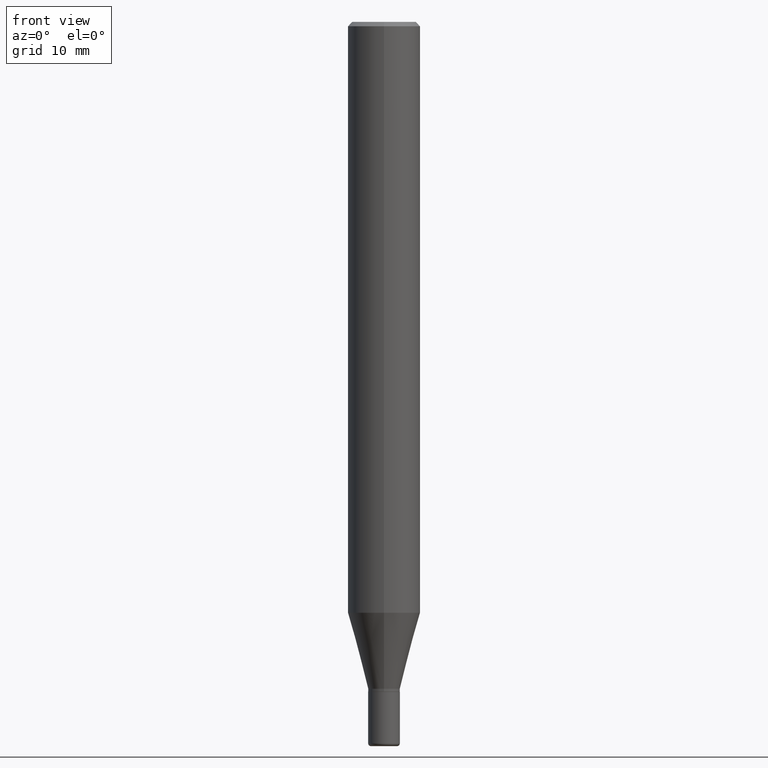
[diagram: clean part render]
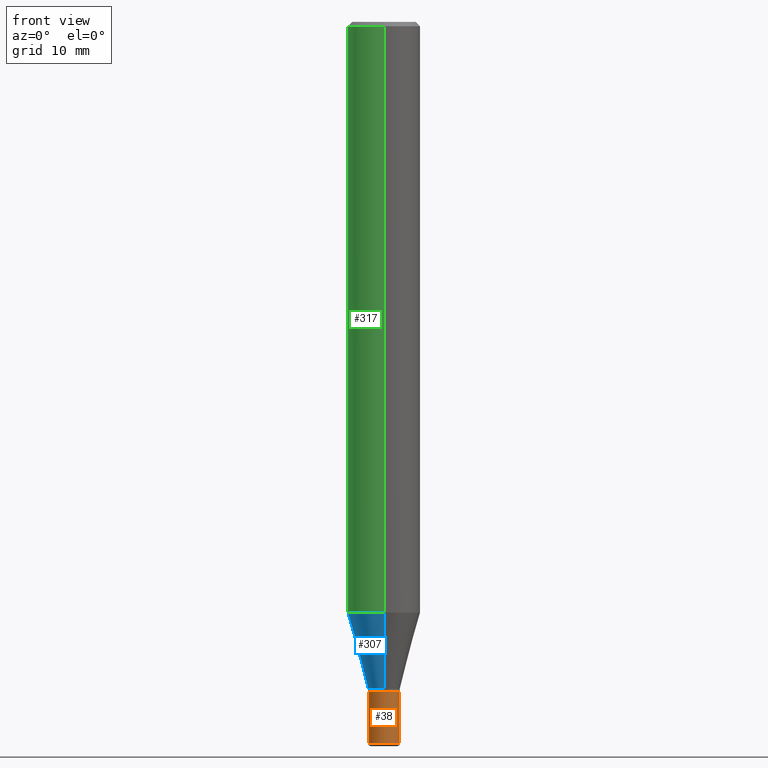
[diagram: same view with three faces highlighted in distinct colors, each labeled with its STEP entity id]
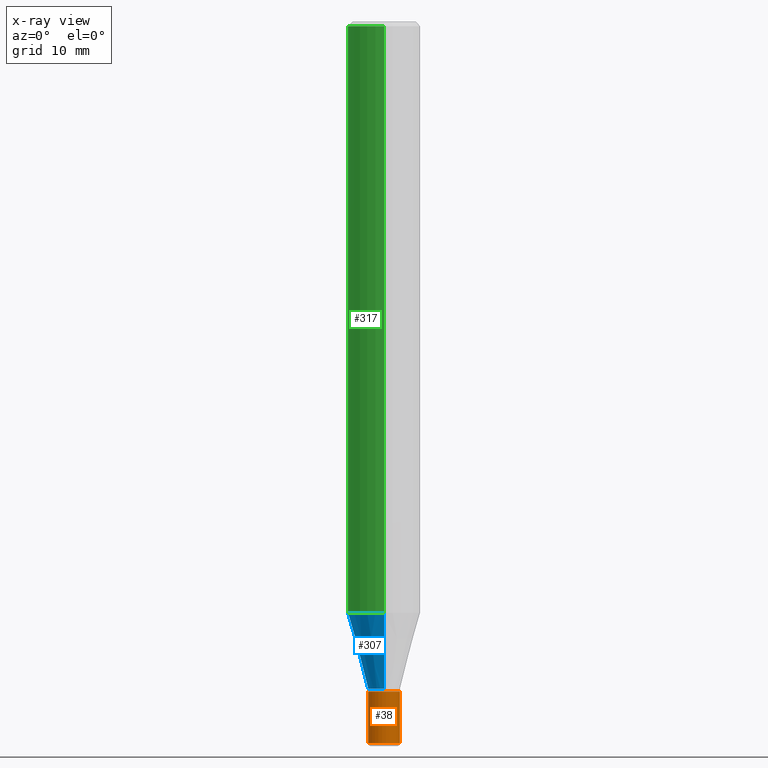
[diagram: x-ray of the same camera — body ghosted, the three highlighted faces saturated]
A machine part, front view with three faces highlighted in distinct colors.
The next image is the same camera in x-ray (body ghosted, the three faces saturated) — at least one of them is partly hidden behind the body in this view.
Their STEP definitions:

[orange] entity #38 — the highlighted cylindrical surface (edge-blend (fillet) strip) has radius 1.3894 mm, axis along (-0, 0, 1).
#38 = ADVANCED_FACE ( 'NONE', ( #425 ), #113, .T. ) ;
#66 = CARTESIAN_POINT ( 'NONE',  ( 6.089217327400989947E-29, -8.693788533719431716E-15, -2.489999999999999769 ) ) ;
#105 = CARTESIAN_POINT ( 'NONE',  ( 0.000000000000000000, 0.000000000000000000, 0.000000000000000000 ) ) ;
#107 = CARTESIAN_POINT ( 'NONE',  ( 0.05470000000000008189, -9.075756592188872474E-15, -2.489999999999999769 ) ) ;
#113 = CYLINDRICAL_SURFACE ( 'NONE', #432, 0.05470000000000004026 ) ;
#114 = EDGE_CURVE ( 'NONE', #301, #347, #260, .T. ) ;
#129 = DIRECTION ( 'NONE',  ( 1.000000000000000000, -6.982962677686260400E-15, 0.000000000000000000 ) ) ;
#167 = LINE ( 'NONE', #251, #324 ) ;
#192 = EDGE_CURVE ( 'NONE', #313, #347, #508, .T. ) ;
#204 = CARTESIAN_POINT ( 'NONE',  ( 0.05469999999999999862, -8.454272913874791960E-15, -2.312000000000000277 ) ) ;
#233 = EDGE_LOOP ( 'NONE', ( #458, #410, #417, #450 ) ) ;
#251 = CARTESIAN_POINT ( 'NONE',  ( -0.05470000000000004026, 3.886668764607750877E-16, -2.690657494369435810E-30 ) ) ;
#260 = LINE ( 'NONE', #416, #393 ) ;
#266 = DIRECTION ( 'NONE',  ( -2.445468806185136877E-29, 3.491481338843145188E-15, 1.000000000000000000 ) ) ;
#268 = DIRECTION ( 'NONE',  ( 1.000000000000000000, -6.982962677686284854E-15, 0.000000000000000000 ) ) ;
#284 = AXIS2_PLACEMENT_3D ( 'NONE', #435, #292, #129 ) ;
#292 = DIRECTION ( 'NONE',  ( -2.445468806185136597E-29, 3.491481338843145583E-15, 1.000000000000000000 ) ) ;
#301 = VERTEX_POINT ( 'NONE', #107 ) ;
#313 = VERTEX_POINT ( 'NONE', #371 ) ;
#323 = EDGE_CURVE ( 'NONE', #330, #301, #518, .T. ) ;
#324 = VECTOR ( 'NONE', #368, 39.37007874015748143 ) ;
#330 = VERTEX_POINT ( 'NONE', #448 ) ;
#347 = VERTEX_POINT ( 'NONE', #204 ) ;
#368 = DIRECTION ( 'NONE',  ( -2.445468806185136877E-29, 3.491481338843145188E-15, 1.000000000000000000 ) ) ;
#371 = CARTESIAN_POINT ( 'NONE',  ( -0.05469999999999999862, -7.994379818101616864E-15, -2.312000000000000277 ) ) ;
#393 = VECTOR ( 'NONE', #266, 39.37007874015748143 ) ;
#410 = ORIENTED_EDGE ( 'NONE', *, *, #323, .T. ) ;
#414 = DIRECTION ( 'NONE',  ( -2.445468806185136597E-29, 3.491481338843145583E-15, 1.000000000000000000 ) ) ;
#416 = CARTESIAN_POINT ( 'NONE',  ( 0.05470000000000004026, -3.819680584694390817E-16, 2.667268696360379056E-30 ) ) ;
#417 = ORIENTED_EDGE ( 'NONE', *, *, #114, .T. ) ;
#425 = FACE_OUTER_BOUND ( 'NONE', #233, .T. ) ;
#432 = AXIS2_PLACEMENT_3D ( 'NONE', #105, #507, #505 ) ;
#434 = EDGE_CURVE ( 'NONE', #330, #313, #167, .T. ) ;
#435 = CARTESIAN_POINT ( 'NONE',  ( 5.653923879900035579E-29, -8.072304855405352780E-15, -2.312000000000000277 ) ) ;
#448 = CARTESIAN_POINT ( 'NONE',  ( -0.05470000000000009577, -7.994379818101615286E-15, -2.489999999999999769 ) ) ;
#450 = ORIENTED_EDGE ( 'NONE', *, *, #192, .F. ) ;
#453 = AXIS2_PLACEMENT_3D ( 'NONE', #66, #414, #268 ) ;
#458 = ORIENTED_EDGE ( 'NONE', *, *, #434, .F. ) ;
#505 = DIRECTION ( 'NONE',  ( 1.000000000000000000, -6.982962677686266711E-15, 4.876176775795936353E-29 ) ) ;
#507 = DIRECTION ( 'NONE',  ( -2.445468806185136597E-29, 3.491481338843145583E-15, 1.000000000000000000 ) ) ;
#508 = CIRCLE ( 'NONE', #284, 0.05469999999999999862 ) ;
#518 = CIRCLE ( 'NONE', #453, 0.05470000000000008189 ) ;

[blue] entity #307 — the highlighted conical surface has half-angle 15 deg.
#3 = DIRECTION ( 'NONE',  ( -6.982962677686265922E-15, -1.000000000000000000, 4.994237648380730566E-15 ) ) ;
#12 = CARTESIAN_POINT ( 'NONE',  ( -3.819680584693829247E-16, -0.05470000000000810325, -2.302000000000000046 ) ) ;
#15 = VERTEX_POINT ( 'NONE', #158 ) ;
#16 = DIRECTION ( 'NONE',  ( -2.445425972994914586E-29, 3.491542678409457073E-15, 1.000000000000000000 ) ) ;
#35 = CONICAL_SURFACE ( 'NONE', #111, 0.05470000000000006801, 0.2617993877991492968 ) ;
#87 = VECTOR ( 'NONE', #190, 39.37007874015748854 ) ;
#92 = VERTEX_POINT ( 'NONE', #380 ) ;
#94 = ORIENTED_EDGE ( 'NONE', *, *, #452, .F. ) ;
#111 = AXIS2_PLACEMENT_3D ( 'NONE', #149, #16, #338 ) ;
#121 = CARTESIAN_POINT ( 'NONE',  ( 4.987780875225493801E-29, -7.121479034213441071E-15, -2.039636828227908261 ) ) ;
#126 = EDGE_CURVE ( 'NONE', #15, #265, #399, .T. ) ;
#149 = CARTESIAN_POINT ( 'NONE',  ( 5.629370589834293603E-29, -8.037531245698571084E-15, -2.302000000000000046 ) ) ;
#158 = CARTESIAN_POINT ( 'NONE',  ( 6.384226480805032602E-16, 0.05469999999999203277, -2.302000000000000490 ) ) ;
#176 = LINE ( 'NONE', #327, #214 ) ;
#190 = DIRECTION ( 'NONE',  ( -1.807323732225323434E-15, -0.2588190451025172423, 0.9659258262890693114 ) ) ;
#205 = VERTEX_POINT ( 'NONE', #396 ) ;
#214 = VECTOR ( 'NONE', #293, 39.37007874015748854 ) ;
#239 = FACE_OUTER_BOUND ( 'NONE', #252, .T. ) ;
#252 = EDGE_LOOP ( 'NONE', ( #456, #439, #256, #94 ) ) ;
#256 = ORIENTED_EDGE ( 'NONE', *, *, #281, .T. ) ;
#265 = VERTEX_POINT ( 'NONE', #12 ) ;
#281 = EDGE_CURVE ( 'NONE', #265, #205, #298, .T. ) ;
#293 = DIRECTION ( 'NONE',  ( 1.839019923739593216E-15, 0.2588190451025239591, 0.9659258262890673130 ) ) ;
#298 = LINE ( 'NONE', #462, #87 ) ;
#307 = ADVANCED_FACE ( 'NONE', ( #239 ), #35, .T. ) ;
#309 = DIRECTION ( 'NONE',  ( -6.982962677686265922E-15, -1.000000000000000000, 4.370956789862821150E-15 ) ) ;
#327 = CARTESIAN_POINT ( 'NONE',  ( 3.886668764608315406E-16, 0.05469999999999203277, -2.302000000000000490 ) ) ;
#338 = DIRECTION ( 'NONE',  ( -6.982962677686265922E-15, -1.000000000000000000, 4.994237648380730566E-15 ) ) ;
#380 = CARTESIAN_POINT ( 'NONE',  ( 8.881784197001751278E-16, 0.1249999999999929085, -2.039636828227908705 ) ) ;
#386 = CIRCLE ( 'NONE', #391, 0.1250000000000000000 ) ;
#391 = AXIS2_PLACEMENT_3D ( 'NONE', #121, #481, #309 ) ;
#396 = CARTESIAN_POINT ( 'NONE',  ( -8.728703347107332462E-16, -0.1250000000000070777, -2.039636828227907817 ) ) ;
#398 = DIRECTION ( 'NONE',  ( -2.445425972994914586E-29, 3.491542678409457073E-15, 1.000000000000000000 ) ) ;
#399 = CIRCLE ( 'NONE', #470, 0.05470000000000006801 ) ;
#433 = EDGE_CURVE ( 'NONE', #15, #92, #176, .T. ) ;
#436 = CARTESIAN_POINT ( 'NONE',  ( 5.629370589834293603E-29, -8.037531245698571084E-15, -2.302000000000000046 ) ) ;
#439 = ORIENTED_EDGE ( 'NONE', *, *, #126, .T. ) ;
#452 = EDGE_CURVE ( 'NONE', #92, #205, #386, .T. ) ;
#456 = ORIENTED_EDGE ( 'NONE', *, *, #433, .F. ) ;
#462 = CARTESIAN_POINT ( 'NONE',  ( -3.819680584693829247E-16, -0.05470000000000810325, -2.302000000000000046 ) ) ;
#470 = AXIS2_PLACEMENT_3D ( 'NONE', #436, #398, #3 ) ;
#481 = DIRECTION ( 'NONE',  ( -2.445425972994914586E-29, 3.491542678409457073E-15, 1.000000000000000000 ) ) ;

[green] entity #317 — the highlighted cylindrical surface (edge-blend (fillet) strip) has radius 3.175 mm, axis along (-0, 0, 1).
#14 = CARTESIAN_POINT ( 'NONE',  ( -8.728703347107828458E-16, -0.1250000000000000555, -0.01500000000000006363 ) ) ;
#48 = ORIENTED_EDGE ( 'NONE', *, *, #354, .T. ) ;
#53 = FACE_OUTER_BOUND ( 'NONE', #500, .T. ) ;
#60 = DIRECTION ( 'NONE',  ( -2.445425972994914586E-29, 3.491542678409457073E-15, 1.000000000000000000 ) ) ;
#67 = CIRCLE ( 'NONE', #99, 0.1250000000000000000 ) ;
#68 = CARTESIAN_POINT ( 'NONE',  ( -8.728703347107832402E-16, -0.1250000000000000000, 4.364428348011821341E-16 ) ) ;
#72 = CARTESIAN_POINT ( 'NONE',  ( 8.881784197001251337E-16, 0.1250000000000000000, -4.364428348011821341E-16 ) ) ;
#74 = EDGE_CURVE ( 'NONE', #92, #145, #430, .T. ) ;
#78 = AXIS2_PLACEMENT_3D ( 'NONE', #502, #159, #303 ) ;
#90 = CARTESIAN_POINT ( 'NONE',  ( 8.881784197001751278E-16, 0.1249999999999999306, -0.01500000000000093446 ) ) ;
#92 = VERTEX_POINT ( 'NONE', #380 ) ;
#99 = AXIS2_PLACEMENT_3D ( 'NONE', #223, #60, #109 ) ;
#100 = ORIENTED_EDGE ( 'NONE', *, *, #74, .F. ) ;
#109 = DIRECTION ( 'NONE',  ( -6.982962677686265922E-15, -1.000000000000000000, 3.483106191921935554E-15 ) ) ;
#112 = VERTEX_POINT ( 'NONE', #14 ) ;
#121 = CARTESIAN_POINT ( 'NONE',  ( 4.987780875225493801E-29, -7.121479034213441071E-15, -2.039636828227908261 ) ) ;
#145 = VERTEX_POINT ( 'NONE', #90 ) ;
#156 = CYLINDRICAL_SURFACE ( 'NONE', #78, 0.1250000000000000000 ) ;
#159 = DIRECTION ( 'NONE',  ( -2.445425972994914586E-29, 3.491542678409457073E-15, 1.000000000000000000 ) ) ;
#205 = VERTEX_POINT ( 'NONE', #396 ) ;
#223 = CARTESIAN_POINT ( 'NONE',  ( 3.668138959492494003E-31, -5.237314017614360786E-17, -0.01500000000000049905 ) ) ;
#242 = VECTOR ( 'NONE', #377, 39.37007874015748143 ) ;
#263 = LINE ( 'NONE', #68, #242 ) ;
#283 = EDGE_CURVE ( 'NONE', #145, #112, #67, .T. ) ;
#303 = DIRECTION ( 'NONE',  ( -6.982962677686265922E-15, -1.000000000000000000, 3.491542678409457073E-15 ) ) ;
#309 = DIRECTION ( 'NONE',  ( -6.982962677686265922E-15, -1.000000000000000000, 4.370956789862821150E-15 ) ) ;
#317 = ADVANCED_FACE ( 'NONE', ( #53 ), #156, .T. ) ;
#351 = VECTOR ( 'NONE', #494, 39.37007874015748143 ) ;
#354 = EDGE_CURVE ( 'NONE', #205, #112, #263, .T. ) ;
#365 = ORIENTED_EDGE ( 'NONE', *, *, #283, .F. ) ;
#377 = DIRECTION ( 'NONE',  ( -2.445425972994914586E-29, 3.491542678409457073E-15, 1.000000000000000000 ) ) ;
#380 = CARTESIAN_POINT ( 'NONE',  ( 8.881784197001751278E-16, 0.1249999999999929085, -2.039636828227908705 ) ) ;
#386 = CIRCLE ( 'NONE', #391, 0.1250000000000000000 ) ;
#391 = AXIS2_PLACEMENT_3D ( 'NONE', #121, #481, #309 ) ;
#396 = CARTESIAN_POINT ( 'NONE',  ( -8.728703347107332462E-16, -0.1250000000000070777, -2.039636828227907817 ) ) ;
#430 = LINE ( 'NONE', #72, #351 ) ;
#452 = EDGE_CURVE ( 'NONE', #92, #205, #386, .T. ) ;
#460 = ORIENTED_EDGE ( 'NONE', *, *, #452, .T. ) ;
#481 = DIRECTION ( 'NONE',  ( -2.445425972994914586E-29, 3.491542678409457073E-15, 1.000000000000000000 ) ) ;
#494 = DIRECTION ( 'NONE',  ( -2.445425972994914586E-29, 3.491542678409457073E-15, 1.000000000000000000 ) ) ;
#500 = EDGE_LOOP ( 'NONE', ( #100, #460, #48, #365 ) ) ;
#502 = CARTESIAN_POINT ( 'NONE',  ( 0.000000000000000000, 0.000000000000000000, 0.000000000000000000 ) ) ;